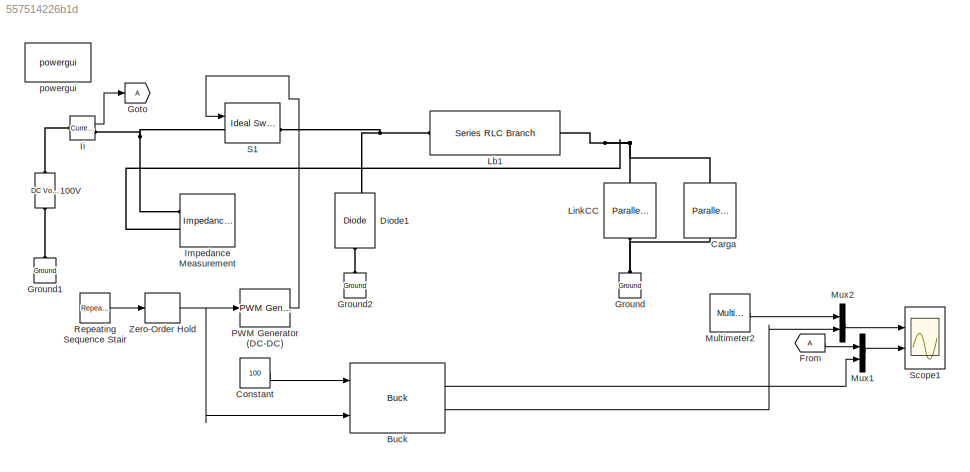
MODEL slx_557514226b1d
KIND model
CONFIG AbsTol = auto
CONFIG FixedStep = auto
CONFIG MaxStep = 1e-5
CONFIG MinStep = auto
CONFIG RelTol = 1e-3
CONFIG SampleTimeConstraint = Unconstrained
CONFIG Solver = ode45
CONFIG SolverMode = Auto
CONFIG SolverName = ode45
CONFIG StartTime = 0.0
CONFIG StopTime = 0.05
BLOCK [Reference] 100V  REF=powerlib/Electrical
Sources/DC Voltage Source
  Amplitude = 100
  Measurements = None
  Ports = [0, 0, 0, 0, 0, 1, 1]
  SourceBlock = powerlib/Electrical\nSources/DC Voltage Source
  SourceType = DC Voltage Source
BLOCK [Reference] Buck  REF=AvgModels/Conversores
Eletrônicos de Potência/Buck
  C = 100e-6
  Edit_carga = 50
  Fs = 40000
  Iini = 0
  L = 280e-6
  Ports = [3, 2]
  RL = 0
  Rdon = 1e-3
  Rdson = 10e-3
  SourceBlock = AvgModels/Conversores\nEletrônicos de Potência/Buck
  SourceType = Buck
  Vdon = 0.8
  Vini = 200
  Vson = 0
BLOCK [Reference] Carga  REF=powerlib/Elements/Parallel RLC Branch
  AttributesFormatString = \n
  BranchType = R
  Capacitance = 100e-6
  Inductance = 1e-3
  InitialCurrent = 0
  InitialVoltage = 0
  LConnTagsString = a
  Measurements = Branch voltage
  Ports = [0, 0, 0, 0, 0, 1, 1]
  RConnTagsString = __new0
  Resistance = 50
  SetiL0 = off
  Setx0 = off
  SourceBlock = powerlib/Elements/Parallel RLC Branch
  SourceType = Parallel RLC Branch
BLOCK [Constant] Constant
  Value = 100
BLOCK [Reference] Diode1  REF=powerlib/Power
Electronics/Diode
  Cs = 250e-9
  IC = 0
  Lon = 0
  Measurements = on
  Ports = [0, 1, 0, 0, 0, 1, 1]
  Ron = 0.001
  Rs = 500
  SourceBlock = powerlib/Power\nElectronics/Diode
  SourceType = Diode
  UseSnubber = off
  Vf = 0.8
BLOCK [From] From
BLOCK [Goto] Goto
BLOCK [Reference] Ground  REF=powerlib/Elements/Ground
  LConnTagsString = a
  Ports = [0, 0, 0, 0, 0, 1]
  SourceBlock = powerlib/Elements/Ground
  SourceType = Ground
BLOCK [Reference] Ground1  REF=powerlib/Elements/Ground
  LConnTagsString = a
  Ports = [0, 0, 0, 0, 0, 1]
  SourceBlock = powerlib/Elements/Ground
  SourceType = Ground
BLOCK [Reference] Ground2  REF=powerlib/Elements/Ground
  LConnTagsString = a
  Ports = [0, 0, 0, 0, 0, 1]
  SourceBlock = powerlib/Elements/Ground
  SourceType = Ground
BLOCK [Reference] Ii  REF=powerlib/Measurements/Current Measurement
  OutputType = Complex
  PSBequivalent = 0
  PhasorSimulation = off
  Ports = [0, 1, 0, 0, 0, 1, 1]
  SourceBlock = powerlib/Measurements/Current Measurement
  SourceType = Current Measurement
  UserDataPersistent = on
BLOCK [Reference] Impedance Measurement  REF=powerlib/Measurements/Impedance Measurement
  Factor = 1
  LConnTagsString = +|-
  Ports = [0, 0, 0, 0, 0, 2]
  SourceBlock = powerlib/Measurements/Impedance Measurement
  SourceType = Impedance Measurement
BLOCK [Reference] Lb1  REF=powerlib/Elements/Series RLC Branch
  BranchType = L
  Capacitance = 1e-6
  Inductance = 280e-6
  InitialCurrent = 1
  InitialVoltage = 0
  LConnTagsString = __new0
  Measurements = Branch current
  Ports = [0, 0, 0, 0, 0, 1, 1]
  RConnTagsString = __new0
  Resistance = 1e-3
  SetiL0 = off
  Setx0 = off
  SourceBlock = powerlib/Elements/Series RLC Branch
  SourceType = Series RLC Branch
BLOCK [Reference] LinkCC  REF=powerlib/Elements/Parallel RLC Branch
  AttributesFormatString = \n
  BranchType = C
  Capacitance = 100e-6
  Inductance = 1e-3
  InitialCurrent = 0
  InitialVoltage = 200
  LConnTagsString = a
  Measurements = Branch voltage
  Ports = [0, 0, 0, 0, 0, 1, 1]
  RConnTagsString = __new0
  Resistance = 10e3
  SetiL0 = off
  Setx0 = on
  SourceBlock = powerlib/Elements/Parallel RLC Branch
  SourceType = Parallel RLC Branch
BLOCK [Reference] Multimeter2  REF=powerlib/Measurements/Multimeter
  AxesSetting = [0,0.1,-100,100]
  Display = 0
  Gain = 1
  L = 3
  OutputType = Complex
  PSBOutputType = 1
  PSBequivalent = 0
  PhasorSimulation = off
  Ports = [0, 1]
  SavedBlockNames = -11
  SourceBlock = powerlib/Measurements/Multimeter
  SourceType = MultimeterPSB
  sel = 2
  yselected = {'Ub: LinkCC'};
BLOCK [Mux] Mux1
  DisplayOption = bar
  Inputs = 2
  Ports = [2, 1]
BLOCK [Mux] Mux2
  DisplayOption = bar
  Inputs = 2
  Ports = [2, 1]
BLOCK [Reference] PWM Generator (DC-DC)  REF=powerlib_meascontrol/Pulse & Signal
Generators/PWM Generator
(DC-DC)
  Fsw = 40000
  Ports = [1, 1]
  SourceBlock = powerlib_meascontrol/Pulse & Signal\nGenerators/PWM Generator\n(DC-DC)
  SourceType = PWM Generator (DC-DC)
  Ts = 0
BLOCK [Reference] Repeating Sequence Stair  REF=simulink/Sources/Repeating
Sequence
Stair
  ConRadixGroup = Best Precision: Vector-wise
  LockScale = off
  OutDataType = fixdt(0,8)
  OutDataTypeStr = double
  OutMax = []
  OutMin = []
  OutScaling = 2^-12
  OutValues = [0.2 0.4 0.6 0.8 0.6 0.2].'
  OutputDataTypeScalingMode = double
  Ports = [0, 1]
  SourceBlock = simulink/Sources/Repeating\nSequence\nStair
  SourceType = Repeating Sequence Stair
  tsamp = 0.01
BLOCK [Reference] S1  REF=powerlib/Power
Electronics/Ideal Switch
  Cs = inf
  IC = 0
  Lon = 0
  Measurements = on
  Ports = [1, 1, 0, 0, 0, 1, 1]
  Ron = 0.1
  Rs = 1e5
  SourceBlock = powerlib/Power\nElectronics/Ideal Switch
  SourceType = Ideal Switch
BLOCK [Scope] Scope1
  DataFormat = StructureWithTime
  Floating = off
  LimitDataPoints = off
  NumInputPorts = 2
  Ports = [2]
  SampleTime = 0
  SaveName = ScopeData1
  TimeRange = 0.05
  YMax = 200~14
  YMin = 20~-2
BLOCK [ZeroOrderHold] Zero-Order Hold
  SampleTime = 0.01
BLOCK [Reference] powergui  REF=powerlib/powergui
  DisableRonSwitches = off
  DisableSnubberDevices = off
  DisableVfSwitches = off
  DisplayEquations = off
  DisplayStyle = 1
  EnableUseOfTLC = off
  ErrMax = 1e-4
  Frange = [0:2:500]
  FreqAxis = off
  FunctionMessages = off
  HookPort = off
  Interpol = off
  Iterations = 50
  MaxFrequency = 1000
  Pbase = 100e6
  Ports = []
  Priority = 1
  ResistiveCurrentMeasurement = off
  RestoreLinks = warning
  RmsSteady = 1
  SPID = on
  SampleTime = 50e-6
  ShowGrid = off
  SolverType = Tustin
  SourceBlock = powerlib/powergui
  SourceType = PSB option menu block
  StartTime = 0.0
  SwTol = 0
  Ts = 0
  UnitsV = kV
  UnitsW = MW
  UserDataPersistent = on
  Xlog = on
  Ylog = off
  ZoomFFT = off
  buscounter = 0
  cycles = 1
  display = off
  echomessages = off
  frequency = 60
  frequencyindice = 0
  frequencyindicesteady = 1
  fundamental = 60
  methode = off
  save = off
  structure = 0
  variable = ZData
  x0status = blocks
LINE Buck:1 -> Mux1:2
LINE Buck:2 -> Mux2:2
LINE Constant:1 -> Buck:1
LINE From:1 -> Mux1:1
LINE Ii:1 -> Goto:1
LINE Multimeter2:1 -> Mux2:1
LINE Mux1:1 -> Scope1:2
LINE Mux2:1 -> Scope1:1
LINE PWM Generator (DC-DC):1 -> S1:1
LINE Repeating Sequence Stair:1 -> Zero-Order Hold:1
NET Zero-Order Hold:1 -> Buck:3, PWM Generator (DC-DC):1
PLINE 100V:LConn1 -- Ground1:LConn1
PLINE 100V:RConn1 -- Ii:LConn1
PNET net1: Carga:LConn1 -- Impedance Measurement:LConn2 -- Lb1:RConn1 -- LinkCC:LConn1
PNET net2: Carga:RConn1 -- Ground:LConn1 -- LinkCC:RConn1
PLINE Diode1:LConn1 -- Ground2:LConn1
PNET net3: Diode1:RConn1 -- Lb1:LConn1 -- S1:RConn1
PNET net4: Ii:RConn1 -- Impedance Measurement:LConn1 -- S1:LConn1
note: NET lines group one-source signal fan-out (src -> all destinations, sorted); 1:1 wires keep LINE; PNET lines group multi-terminal physical nets as a canonical sorted terminal list (undirected conserving connections); 2-terminal nets keep the pairwise PLINE form
